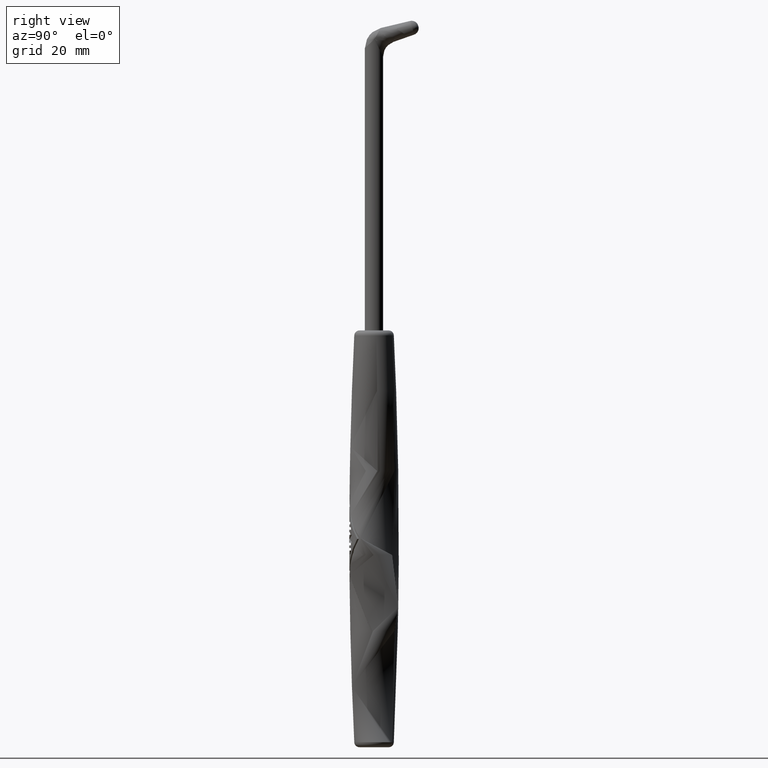
[diagram: clean part render]
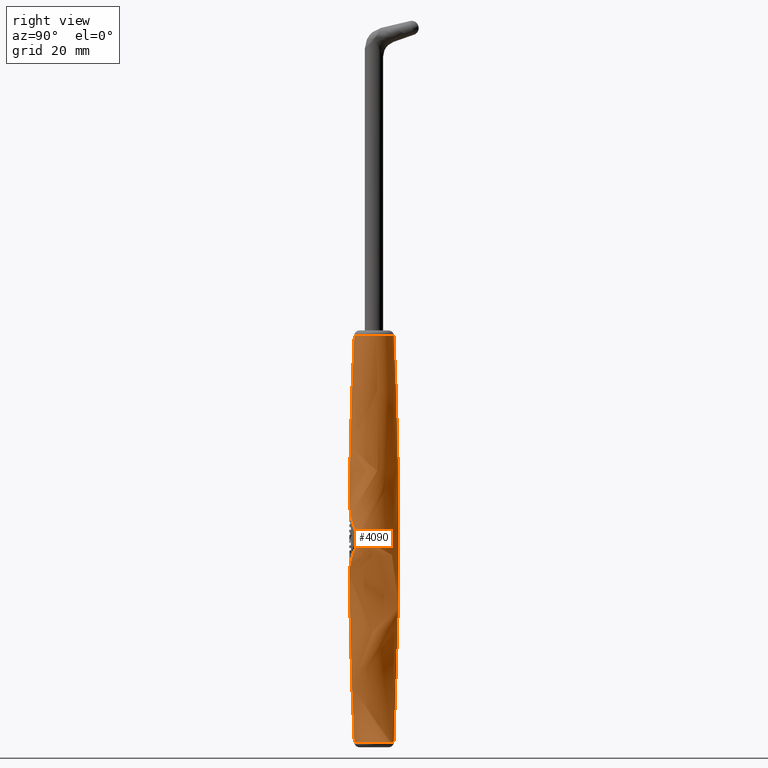
[diagram: same view with one face highlighted and labeled with its STEP entity id]
A machine part, right view. The second image highlights one B-rep face of the part: STEP entity #4090.
In plain terms, the highlighted toroidal blend (fillet) surface has major radius 795.25 mm and minor (blend) radius 800 mm.
Its self-contained STEP definition (entity closure, byte-faithful):
#720=CARTESIAN_POINT('',(32.788637,74.3702629999999,0.));
#730=DIRECTION('',(0.,-1.,0.));
#740=DIRECTION('',(-1.,0.,0.));
#750=AXIS2_PLACEMENT_3D('',#720,#730,#740);
#760=DEGENERATE_TOROIDAL_SURFACE('',#750,795.25,800.,.F.);
#770=CARTESIAN_POINT('',(828.038637,74.3702629999999,0.));
#780=DIRECTION('',(0.,0.,-1.));
#790=DIRECTION('',(1.,0.,0.));
#800=AXIS2_PLACEMENT_3D('',#770,#780,#790);
#810=CIRCLE('',#800,800.);
#820=CARTESIAN_POINT('',(28.992211341008,35.3214519862327,0.));
#830=VERTEX_POINT('',#820);
#840=CARTESIAN_POINT('',(28.0692956196094,67.3664889156815,0.));
#850=VERTEX_POINT('',#840);
#860=EDGE_CURVE('',#830,#850,#810,.T.);
#870=ORIENTED_EDGE('',*,*,#860,.F.);
#880=CARTESIAN_POINT('',(0.,67.4914889156829,-1.72755401708477E-12));
#890=DIRECTION('',(1.,-1.05090672516673E-13,4.40354167717628E-14));
#900=DIRECTION('',(-1.05090672516673E-13,-1.,0.));
#910=AXIS2_PLACEMENT_3D('',#880,#890,#900);
#920=CYLINDRICAL_SURFACE('',#910,0.124999999998482);
#930=CARTESIAN_POINT('',(32.788637,74.3702629999999,0.));
#940=DIRECTION('',(0.,-1.,0.));
#950=DIRECTION('',(-1.,0.,0.));
#960=AXIS2_PLACEMENT_3D('',#930,#940,#950);
#970=DEGENERATE_TOROIDAL_SURFACE('',#960,795.25,800.,.F.);
#980=CARTESIAN_POINT('',(28.06999457162,67.4294571419697,
0.108522159257368));
#990=CARTESIAN_POINT('',(28.0699734230508,67.4247232473878,
0.105816242977389));
#1000=CARTESIAN_POINT('',(28.069945822706,67.4201413777333,
0.102784650626078));
#1010=CARTESIAN_POINT('',(28.0699137051712,67.4157720473487,
0.0994583121192661));
#1020=CARTESIAN_POINT('',(28.069881588067,67.41140277554,
0.0961320182058982));
#1030=CARTESIAN_POINT('',(28.0698449937399,67.4072488955841,
0.0925130370566456));
#1040=CARTESIAN_POINT('',(28.0698062574487,67.4033617192997,
0.0886487295885884));
#1050=CARTESIAN_POINT('',(28.0697674990911,67.3994723286554,
0.0847822207881662));
#1060=CARTESIAN_POINT('',(28.0697267424949,67.395860381997,
0.0806832237079698));
#1070=CARTESIAN_POINT('',(28.069686035617,67.3925361752307,
0.0763764044527527));
#1080=CARTESIAN_POINT('',(28.0696452433021,67.3892049914984,
0.0720605458887191));
#1090=CARTESIAN_POINT('',(28.0696041888446,67.3861390157557,
0.0675022362749467));
#1100=CARTESIAN_POINT('',(28.0695651157633,67.3833822930767,
0.0627531525014719));
#1110=CARTESIAN_POINT('',(28.0695260432232,67.3806256085774,
0.0580041345013525));
#1120=CARTESIAN_POINT('',(28.0694889966555,67.3781800217851,
0.0530673347129486));
#1130=CARTESIAN_POINT('',(28.0694559181566,67.3760748350233,
0.0480061452913774));
#1140=CARTESIAN_POINT('',(28.0694228227395,67.3739685715579,
0.042942367310359));
#1150=CARTESIAN_POINT('',(28.0693937835661,67.372207283759,
0.0377688139176062));
#1160=CARTESIAN_POINT('',(28.069369974776,67.3707922350756,
0.0325163234498288));
#1170=CARTESIAN_POINT('',(28.0693461152446,67.3693741706415,
0.0272526388777971));
#1180=CARTESIAN_POINT('',(28.0693273377002,67.3682939524193,
0.0218667304790719));
#1190=CARTESIAN_POINT('',(28.069314709655,67.3675724940341,
0.0164231679681645));
#1200=CARTESIAN_POINT('',(28.0693020817911,67.3668510460084,
0.010979683622243));
#1210=CARTESIAN_POINT('',(28.0692956196094,67.3664889156815,
0.00548201987246978));
#1220=CARTESIAN_POINT('',(28.0692956196094,67.3664889156815,
-6.45012004021367E-18));
#1230=B_SPLINE_CURVE_WITH_KNOTS('',3,(#980,#990,#1000,#1010,#1020,#1030,
#1040,#1050,#1060,#1070,#1080,#1090,#1100,#1110,#1120,#1130,#1140,#1150,
#1160,#1170,#1180,#1190,#1200,#1210,#1220),.UNSPECIFIED.,.F.,.F.,(4,3,3,
3,3,3,3,3,4),(0.,0.0164264979245538,0.0328966859289097,
0.0492735048877839,0.0656987630179328,0.0821692621437854,
0.0985470328376772,0.114971020702245,0.131441823960036),.UNSPECIFIED.);
#1240=SURFACE_CURVE('',#1230,(#920,#970),.CURVE_3D.);
#1250=CARTESIAN_POINT('',(28.06999457162,67.4294571419697,
0.108522159257338));
#1260=VERTEX_POINT('',#1250);
#1270=EDGE_CURVE('',#1260,#850,#1240,.T.);
#1280=ORIENTED_EDGE('',*,*,#1270,.T.);
#1290=CARTESIAN_POINT('',(28.918386727518,71.4299838762717,
2.39524194810792));
#1300=DIRECTION('',(9.03822346290706E-14,0.496254189687468,
-0.868177274073466));
#1310=DIRECTION('',(0.,-0.868177274073466,-0.496254189687468));
#1320=AXIS2_PLACEMENT_3D('',#1290,#1300,#1310);
#1330=PLANE('',#1320);
#1340=CARTESIAN_POINT('',(30.234746167557,74.2461980676072,
4.00500314923947));
#1350=CARTESIAN_POINT('',(30.1817062592588,74.1870083556419,
3.97117003309334));
#1360=CARTESIAN_POINT('',(30.1301173075447,74.1268307822393,
3.93677225073021));
#1370=CARTESIAN_POINT('',(30.0799439131127,74.0658473414141,
3.90191383077979));
#1380=CARTESIAN_POINT('',(30.0297705578825,74.0048639482368,
3.86705543806513));
#1390=CARTESIAN_POINT('',(29.9810127743052,73.9430744274888,
3.83173625905922));
#1400=CARTESIAN_POINT('',(29.93364036675,73.8806600798221,
3.79605992606691));
#1410=CARTESIAN_POINT('',(29.9099541707193,73.8494529161955,
3.77822176540495));
#1420=CARTESIAN_POINT('',(29.8866143817167,73.8180895403928,
3.7602943131348));
#1430=CARTESIAN_POINT('',(29.8636175492533,73.7865926530052,
3.74229054501623));
#1440=CARTESIAN_POINT('',(29.8406259868798,73.7551029836302,
3.7242909027474));
#1450=CARTESIAN_POINT('',(29.8179573747539,73.723453114406,
3.70619968949518));
#1460=CARTESIAN_POINT('',(29.7955840010559,73.6916265930471,
3.68800750105716));
#1470=CARTESIAN_POINT('',(29.7508402560254,73.6279778212475,
3.65162556545797));
#1480=CARTESIAN_POINT('',(29.7073033511326,73.5636594993777,
3.61486091190821));
#1490=CARTESIAN_POINT('',(29.6649091834331,73.498740265291,
3.57775277412469));
#1500=CARTESIAN_POINT('',(29.6225149421229,73.4338209184825,
3.54064457190888));
#1510=CARTESIAN_POINT('',(29.5812632917381,73.3683001849869,
3.5031926142505));
#1520=CARTESIAN_POINT('',(29.5410979103244,73.3022391311173,
3.46543180693962));
#1530=CARTESIAN_POINT('',(29.5009324872406,73.2361780087116,
3.42767096045321));
#1540=CARTESIAN_POINT('',(29.4618532462666,73.1695761976655,
3.38960105381153));
#1550=CARTESIAN_POINT('',(29.4238108557485,73.1024894250384,
3.35125394086229));
#1560=CARTESIAN_POINT('',(29.3857684452331,73.0354026171464,
3.31290680775555));
#1570=CARTESIAN_POINT('',(29.3487628389945,72.9678305646299,
3.27428230655236));
#1580=CARTESIAN_POINT('',(29.3127508507323,72.8998253757911,
3.23541022260182));
#1590=CARTESIAN_POINT('',(29.2767388566443,72.8318201759509,
3.19653813236279));
#1600=CARTESIAN_POINT('',(29.241720461629,72.7633816244961,
3.15741833631432));
#1610=CARTESIAN_POINT('',(29.2076577802293,72.6945595134934,
3.11807929583475));
#1620=CARTESIAN_POINT('',(29.1735951018119,72.6257374085165,
3.07874025879953));
#1630=CARTESIAN_POINT('',(29.1404881359327,72.5565315822389,
3.03918188487449));
#1640=CARTESIAN_POINT('',(29.1083034887104,72.4869904773692,
2.99943186413834));
#1650=CARTESIAN_POINT('',(29.0761188495112,72.4174493898348,
2.95968185331108));
#1660=CARTESIAN_POINT('',(29.0448565391112,72.3475729040339,
2.91974012726638));
#1670=CARTESIAN_POINT('',(29.0144869017343,72.2774088144339,
2.87963400554512));
#1680=CARTESIAN_POINT('',(28.9537478298715,72.1370811039809,
2.79942203004064));
#1690=CARTESIAN_POINT('',(28.8965767081199,71.9956016968348,
2.71855173932064));
#1700=CARTESIAN_POINT('',(28.8427711091174,71.8533533286512,
2.63724190687582));
#1710=CARTESIAN_POINT('',(28.7889656469496,71.7111053222242,
2.55593228121274));
#1720=CARTESIAN_POINT('',(28.7385263905761,71.5680869990038,
2.47418233886832));
#1730=CARTESIAN_POINT('',(28.691281086988,71.4246864835178,
2.39221393363773));
#1740=CARTESIAN_POINT('',(28.6440543007491,71.2813421725053,
2.31027765514698));
#1750=CARTESIAN_POINT('',(28.5998620645059,71.1371471241399,
2.22785509120554));
#1760=CARTESIAN_POINT('',(28.5585362766433,70.9922030970226,
2.14500440750863));
#1770=CARTESIAN_POINT('',(28.517211309244,70.8472619475574,
2.0621553686911));
#1780=CARTESIAN_POINT('',(28.4787573369181,70.7015843740958,
1.9788853864663));
#1790=CARTESIAN_POINT('',(28.443048786114,70.5552945316985,
1.89526542846195));
#1800=CARTESIAN_POINT('',(28.4073401684612,70.4090044154373,
1.81164531391567));
#1810=CARTESIAN_POINT('',(28.3743770640011,70.2621008015158,
1.72767452123363));
#1820=CARTESIAN_POINT('',(28.344058357606,70.1146963056061,
1.64341742206911));
#1830=CARTESIAN_POINT('',(28.3137396194377,69.9672916552207,
1.5591602346056));
#1840=CARTESIAN_POINT('',(28.2860653886008,69.8193851893839,
1.47461620708619));
#1850=CARTESIAN_POINT('',(28.2609549728831,69.6710825739042,
1.38984573857566));
#1860=CARTESIAN_POINT('',(28.2358445459815,69.5227798923727,
1.30507523230959));
#1870=CARTESIAN_POINT('',(28.213298046074,69.3740803425362,
1.22007787426986));
#1880=CARTESIAN_POINT('',(28.1932518862268,69.2250859937615,
1.13491200777319));
#1890=CARTESIAN_POINT('',(28.1732057263167,69.0760916445206,
1.04974614101001));
#1900=CARTESIAN_POINT('',(28.1556600127313,68.9268019347029,
0.964411444763313));
#1910=CARTESIAN_POINT('',(28.1405655427667,68.7773177932327,
0.878965610471491));
#1920=CARTESIAN_POINT('',(28.125471077698,68.6278337002479,
0.793519803894156));
#1930=CARTESIAN_POINT('',(28.1128279526774,68.4781547288062,
0.707962603880786));
#1940=CARTESIAN_POINT('',(28.1025991278255,68.3283824763397,
0.622352083996166));
#1950=CARTESIAN_POINT('',(28.0923703088146,68.178610309398,
0.536741612997941));
#1960=CARTESIAN_POINT('',(28.0845558746818,68.0287444980206,
0.451077614402515));
#1970=CARTESIAN_POINT('',(28.0791291487566,67.878888657281,
0.36541931507016));
#1980=CARTESIAN_POINT('',(28.0737024269717,67.7290329308741,
0.279761081090869));
#1990=CARTESIAN_POINT('',(28.0706634858687,67.5791868710806,
0.194108372593087));
#2000=CARTESIAN_POINT('',(28.06999457162,67.4294571419698,
0.108522159257407));
#2010=B_SPLINE_CURVE_WITH_KNOTS('',3,(#1340,#1350,#1360,#1370,#1380,
#1390,#1400,#1410,#1420,#1430,#1440,#1450,#1460,#1470,#1480,#1490,#1500,
#1510,#1520,#1530,#1540,#1550,#1560,#1570,#1580,#1590,#1600,#1610,#1620,
#1630,#1640,#1650,#1660,#1670,#1680,#1690,#1700,#1710,#1720,#1730,#1740,
#1750,#1760,#1770,#1780,#1790,#1800,#1810,#1820,#1830,#1840,#1850,#1860,
#1870,#1880,#1890,#1900,#1910,#1920,#1930,#1940,#1950,#1960,#1970,#1980,
#1990,#2000),.UNSPECIFIED.,.F.,.F.,(4,3,3,3,3,3,3,3,3,3,3,3,3,3,3,3,3,3,
3,3,3,3,4),(0.,0.259088585699981,0.517762096744082,0.64677161372312,
0.775589952852004,1.03335513889347,1.2913530934429,1.54961111352186,
1.80812752487538,2.06687196398165,2.32578614188904,2.58478500177156,
3.10257164443499,3.61907575093345,4.13463779936525,4.65099177989991,
5.16807620961438,5.68578176113113,6.20395891764404,6.72241759322654,
7.24092767956193,7.75922033281914,8.27698981107482),.UNSPECIFIED.);
#2020=SURFACE_CURVE('',#2010,(#970,#1330),.CURVE_3D.);
#2030=CARTESIAN_POINT('',(30.234746167557,74.2461980676083,
4.00500314923988));
#2040=VERTEX_POINT('',#2030);
#2050=EDGE_CURVE('',#2040,#1260,#2020,.T.);
#2060=ORIENTED_EDGE('',*,*,#2050,.T.);
#2070=CARTESIAN_POINT('',(0.,74.3702616150425,3.78795883072429));
#2080=DIRECTION('',(1.,-4.03296576653487E-13,-1.26420472522698E-13));
#2090=DIRECTION('',(-4.03296576653487E-13,-1.,0.));
#2100=AXIS2_PLACEMENT_3D('',#2070,#2080,#2090);
#2110=CYLINDRICAL_SURFACE('',#2100,0.250000000001231);
#2120=CARTESIAN_POINT('',(30.2347480376235,74.4943230746498,
4.00500434262608));
#2130=CARTESIAN_POINT('',(30.2420593738104,74.4861638392575,
4.00966809560241));
#2140=CARTESIAN_POINT('',(30.2489458632474,74.477463004218,
4.01403237097603));
#2150=CARTESIAN_POINT('',(30.2551996203182,74.4681988578792,
4.01797686580415));
#2160=CARTESIAN_POINT('',(30.261435568358,74.4589610933565,
4.02191012776388));
#2170=CARTESIAN_POINT('',(30.2671178285117,74.4490450726562,
4.02547347798968));
#2180=CARTESIAN_POINT('',(30.2719033855766,74.4385048588047,
4.02846425618897));
#2190=CARTESIAN_POINT('',(30.2742935987633,74.4332404020662,
4.029958042052));
#2200=CARTESIAN_POINT('',(30.276453599605,74.427833290379,
4.03130500045128));
#2210=CARTESIAN_POINT('',(30.2783406278924,74.4223128571058,
4.03248013490277));
#2220=CARTESIAN_POINT('',(30.2802278601469,74.4167918271345,
4.03365539637335));
#2230=CARTESIAN_POINT('',(30.2818409520026,74.4111613626659,
4.03465812775442));
#2240=CARTESIAN_POINT('',(30.28314917024,74.4054453923228,
4.03547065228875));
#2250=CARTESIAN_POINT('',(30.2844585940107,74.3997241546687,
4.03628392557075));
#2260=CARTESIAN_POINT('',(30.2854667478455,74.3938923666343,
4.03690923964121));
#2270=CARTESIAN_POINT('',(30.2861415604612,74.3880149998973,
4.03732766864203));
#2280=CARTESIAN_POINT('',(30.2868163039173,74.3821382355146,
4.03774605475928));
#2290=CARTESIAN_POINT('',(30.2871582437199,74.3762231913641,
4.03795790335005));
#2300=CARTESIAN_POINT('',(30.2871597352669,74.370300632241,
4.03795882767701));
#2310=CARTESIAN_POINT('',(30.2871612267811,74.364378203364,
4.03795975198364));
#2320=CARTESIAN_POINT('',(30.2868222121013,74.3584621098348,
4.03774971614556));
#2330=CARTESIAN_POINT('',(30.2861503481337,74.3525849328539,
4.0373331175021));
#2340=CARTESIAN_POINT('',(30.2854780760939,74.3467041862324,
4.03691626582774));
#2350=CARTESIAN_POINT('',(30.2844706757926,74.3408539513166,
4.03629142805617));
#2360=CARTESIAN_POINT('',(30.2831520389556,74.3350903732154,
4.03547243388159));
#2370=CARTESIAN_POINT('',(30.281833443516,74.3293269760562,
4.03465346541856));
#2380=CARTESIAN_POINT('',(30.280204777702,74.3236546120436,
4.03364104048844));
#2390=CARTESIAN_POINT('',(30.2783115969566,74.3181255146297,
4.03246205572088));
#2400=CARTESIAN_POINT('',(30.2764169339809,74.3125920883128,
4.03128214788933));
#2410=CARTESIAN_POINT('',(30.2742669559926,74.3072229984466,
4.02994139638407));
#2420=CARTESIAN_POINT('',(30.2718969685527,74.3020042383017,
4.0284602455245));
#2430=CARTESIAN_POINT('',(30.2671513840331,74.2915543654723,
4.02549443799664));
#2440=CARTESIAN_POINT('',(30.2614872618113,74.2816382045003,
4.02194273941818));
#2450=CARTESIAN_POINT('',(30.2551964681484,74.2723197018265,
4.0179748772015));
#2460=CARTESIAN_POINT('',(30.252051317783,74.2676608155779,
4.01599110154945));
#2470=CARTESIAN_POINT('',(30.2487502748715,74.2631518102141,
4.01390381085246));
#2480=CARTESIAN_POINT('',(30.2453317280085,74.2587993078318,
4.01173584936765));
#2490=CARTESIAN_POINT('',(30.2419111527166,74.2544442228487,
4.0095666015012));
#2500=CARTESIAN_POINT('',(30.2383855647095,74.2502594409404,
4.00732464922892));
#2510=CARTESIAN_POINT('',(30.2347461675578,74.2461980676077,
4.00500314923989));
#2520=B_SPLINE_CURVE_WITH_KNOTS('',3,(#2120,#2130,#2140,#2150,#2160,
#2170,#2180,#2190,#2200,#2210,#2220,#2230,#2240,#2250,#2260,#2270,#2280,
#2290,#2300,#2310,#2320,#2330,#2340,#2350,#2360,#2370,#2380,#2390,#2400,
#2410,#2420,#2430,#2440,#2450,#2460,#2470,#2480,#2490,#2500,#2510),
.UNSPECIFIED.,.F.,.F.,(4,3,3,3,3,3,3,3,3,3,3,3,3,4),(0.,
0.0356535041775491,0.0713501363249091,0.0892404012219102,
0.107043619773497,0.124838552331442,0.142606666806014,0.160375419208476,
0.178234765643082,0.196142457291439,0.213957262719159,0.249643838769491,
0.267509770043358,0.285294368627586),.UNSPECIFIED.);
#2530=SURFACE_CURVE('',#2520,(#2110,#970),.CURVE_3D.);
#2540=CARTESIAN_POINT('',(30.2347480378606,74.4943230743806,
4.00500434277834));
#2550=VERTEX_POINT('',#2540);
#2560=EDGE_CURVE('',#2550,#2040,#2530,.T.);
#2570=ORIENTED_EDGE('',*,*,#2560,.T.);
#2580=CARTESIAN_POINT('',(28.9242798184541,77.3233665555622,
2.38794596402923));
#2590=DIRECTION('',(-3.0989023252775E-13,-0.496245838467074,
-0.868182047616807));
#2600=DIRECTION('',(0.,-0.868182047616807,0.496245838467074));
#2610=AXIS2_PLACEMENT_3D('',#2580,#2590,#2600);
#2620=PLANE('',#2610);
#2630=CARTESIAN_POINT('',(28.0699968167995,81.3110063456077,
0.108643303317019));
#2640=CARTESIAN_POINT('',(28.0706683107015,81.16118413919,
0.19428046507227));
#2650=CARTESIAN_POINT('',(28.073711558059,81.0115092860478,
0.279833400886687));
#2660=CARTESIAN_POINT('',(28.0791188017404,80.862093901879,
0.365238026333908));
#2670=CARTESIAN_POINT('',(28.0818224224958,80.787386239783,
0.407940321916425));
#2680=CARTESIAN_POINT('',(28.0851171540816,80.7127435017895,
0.450605507406936));
#2690=CARTESIAN_POINT('',(28.0890026699385,80.6381801254288,
0.493225330429795));
#2700=CARTESIAN_POINT('',(28.092887483294,80.5636302301314,
0.53583744778585));
#2710=CARTESIAN_POINT('',(28.0973684217499,80.4890521249626,
0.578465689676344));
#2720=CARTESIAN_POINT('',(28.1024514364922,80.4144523972283,
0.621106290850402));
#2730=CARTESIAN_POINT('',(28.1126173506467,80.2652546343767,
0.70638652571239));
#2740=CARTESIAN_POINT('',(28.1251902415471,80.1159856946594,
0.791707444695053));
#2750=CARTESIAN_POINT('',(28.1402181336167,79.9667808681183,
0.876991717104768));
#2760=CARTESIAN_POINT('',(28.1552460403478,79.8175758960113,
0.962276072718849));
#2770=CARTESIAN_POINT('',(28.1727288014737,79.6684347523449,
1.04752394451024));
#2780=CARTESIAN_POINT('',(28.1927231553511,79.5194890505832,
1.13266010329132));
#2790=CARTESIAN_POINT('',(28.2127175256544,79.3705432264582,
1.21779633201429));
#2800=CARTESIAN_POINT('',(28.2352233255194,79.2217924317736,
1.30282108347725));
#2810=CARTESIAN_POINT('',(28.2603089025166,79.0733656506809,
1.38766063139981));
#2820=CARTESIAN_POINT('',(28.2853944933404,78.9249387877784,
1.47250022608422));
#2830=CARTESIAN_POINT('',(28.3130596849734,78.7768353517907,
1.55715495257044));
#2840=CARTESIAN_POINT('',(28.3433879241392,78.6291834337235,
1.64155159505303));
#2850=CARTESIAN_POINT('',(28.3737161666159,78.4815314995375,
1.72594824674899));
#2860=CARTESIAN_POINT('',(28.4067072750635,78.3343302568246,
1.81008728684307));
#2870=CARTESIAN_POINT('',(28.4424640068266,78.1877096307771,
1.89389445114605));
#2880=CARTESIAN_POINT('',(28.4782207177868,78.0410890900315,
1.97770156669112));
#2890=CARTESIAN_POINT('',(28.5167428813471,77.8950480068944,
2.06117746895261));
#2900=CARTESIAN_POINT('',(28.5581576432296,77.7497222801946,
2.14424447925872));
#2910=CARTESIAN_POINT('',(28.5995723376139,77.6043967903484,
2.22731135418124));
#2920=CARTESIAN_POINT('',(28.6438795011282,77.4597850320563,
2.30997026590614));
#2930=CARTESIAN_POINT('',(28.6912367780341,77.3160350165174,
2.39213661245359));
#2940=CARTESIAN_POINT('',(28.7149154215102,77.2441599935002,
2.43321979444283));
#2950=CARTESIAN_POINT('',(28.7393571614244,77.1725004743896,
2.47417979615108));
#2960=CARTESIAN_POINT('',(28.7645851818467,77.1010766328867,
2.51500508643487));
#2970=CARTESIAN_POINT('',(28.7898131908241,77.0296528237863,
2.55583035819767));
#2980=CARTESIAN_POINT('',(28.8158274816452,76.9584646082223,
2.59652096660275));
#2990=CARTESIAN_POINT('',(28.8426538714459,76.8875338029379,
2.63706444137062));
#3000=CARTESIAN_POINT('',(28.8694841596471,76.8165926900167,
2.6776138079004));
#3010=CARTESIAN_POINT('',(28.8971031587829,76.7459663587217,
2.71798324779783));
#3020=CARTESIAN_POINT('',(28.9256287455513,76.6754614497684,
2.75828328366655));
#3030=CARTESIAN_POINT('',(28.9541507047681,76.6049655068078,
2.79857819464637));
#3040=CARTESIAN_POINT('',(28.9835571744503,76.5346502988284,
2.838769798963));
#3050=CARTESIAN_POINT('',(29.0138740207768,76.4645749991253,
2.87882427365808));
#3060=CARTESIAN_POINT('',(29.0441908813188,76.3944996665637,
2.9188787671348));
#3070=CARTESIAN_POINT('',(29.0754180926825,76.3246641827707,
2.9587961650042));
#3080=CARTESIAN_POINT('',(29.1075839451922,76.2551274057013,
2.99854282451626));
#3090=CARTESIAN_POINT('',(29.1397498119656,76.1855905977964,
3.03828950165361));
#3100=CARTESIAN_POINT('',(29.172854298153,76.1163524068298,
3.07786549176366));
#3110=CARTESIAN_POINT('',(29.2069288448924,76.0474717070709,
3.11723714278995));
#3120=CARTESIAN_POINT('',(29.2410034039548,75.9785909824013,
3.15660880805496));
#3130=CARTESIAN_POINT('',(29.2760480100998,75.9100676194291,
3.19577620826319));
#3140=CARTESIAN_POINT('',(29.3120980727172,75.8419610341458,
3.23470538171459));
#3150=CARTESIAN_POINT('',(29.3481481425666,75.7738544351996,
3.27363456297557));
#3160=CARTESIAN_POINT('',(29.3852036700047,75.7061644327583,
3.3123256210428));
#3170=CARTESIAN_POINT('',(29.4233049346044,75.6389517661254,
3.35074383782165));
#3180=CARTESIAN_POINT('',(29.4614061965884,75.5717391041069,
3.38916205196297));
#3190=CARTESIAN_POINT('',(29.5005532207634,75.5050035298935,
3.42730756657258));
#3200=CARTESIAN_POINT('',(29.5407921261501,75.4388082212718,
3.46514426973838));
#3210=CARTESIAN_POINT('',(29.5810310120765,75.3726129446635,
3.50298095460555));
#3220=CARTESIAN_POINT('',(29.6223618417442,75.3069575999166,
3.5405090187865));
#3230=CARTESIAN_POINT('',(29.6648375768794,75.2419093463469,
3.57769007455942));
#3240=CARTESIAN_POINT('',(29.7073132656727,75.1768611637463,
3.614871089767));
#3250=CARTESIAN_POINT('',(29.7509339794132,75.1124196296943,
3.65170534955302));
#3260=CARTESIAN_POINT('',(29.7957605029309,75.0486579671322,
3.6881510003091));
#3270=CARTESIAN_POINT('',(29.8405869392075,74.9848964286628,
3.72459658013487));
#3280=CARTESIAN_POINT('',(29.8866193892833,74.921814182604,
3.76065388192777));
#3290=CARTESIAN_POINT('',(29.9339273281325,74.8594932615775,
3.79627601647169));
#3300=CARTESIAN_POINT('',(29.9812138464223,74.7972005588379,
3.83188202167098));
#3310=CARTESIAN_POINT('',(30.0298895925116,74.7355174895693,
3.8671395653019));
#3320=CARTESIAN_POINT('',(30.0800184445078,74.6745893267684,
3.90196561050564));
#3330=CARTESIAN_POINT('',(30.1301442206597,74.6136649024441,
3.93678951882634));
#3340=CARTESIAN_POINT('',(30.1817101293128,74.5535118149128,
3.9711725372788));
#3350=CARTESIAN_POINT('',(30.2347480378606,74.4943230743806,
4.00500434277834));
#3360=B_SPLINE_CURVE_WITH_KNOTS('',3,(#2630,#2640,#2650,#2660,#2670,
#2680,#2690,#2700,#2710,#2720,#2730,#2740,#2750,#2760,#2770,#2780,#2790,
#2800,#2810,#2820,#2830,#2840,#2850,#2860,#2870,#2880,#2890,#2900,#2910,
#2920,#2930,#2940,#2950,#2960,#2970,#2980,#2990,#3000,#3010,#3020,#3030,
#3040,#3050,#3060,#3070,#3080,#3090,#3100,#3110,#3120,#3130,#3140,#3150,
#3160,#3170,#3180,#3190,#3200,#3210,#3220,#3230,#3240,#3250,#3260,#3270,
#3280,#3290,#3300,#3310,#3320,#3330,#3340,#3350),.UNSPECIFIED.,.F.,.F.,(
4,3,3,3,3,3,3,3,3,3,3,3,3,3,3,3,3,3,3,3,3,3,3,3,4),(0.,0.517168561879387
,0.775271017536104,1.03332057519467,1.55036129544576,2.06825279804747,
2.58655666476025,3.10490191703535,3.62298999481516,4.14059865774157,
4.65758427596712,4.91582013215457,5.17388195063626,5.43186617357717,
5.69030964512259,5.9491246805618,6.20812622421887,6.46715810233556,
6.72609554966842,6.98484753690025,7.24335876599371,7.50161118285568,
7.75962485750427,8.01790805501589,8.27687426289383),.UNSPECIFIED.);
#3370=SURFACE_CURVE('',#3360,(#970,#2620),.CURVE_3D.);
#3380=CARTESIAN_POINT('',(28.0699968167995,81.3110063456079,
0.108643303316985));
#3390=VERTEX_POINT('',#3380);
#3400=EDGE_CURVE('',#3390,#2550,#3370,.T.);
#3410=ORIENTED_EDGE('',*,*,#3400,.T.);
#3420=CARTESIAN_POINT('',(0.,81.2489067119184,6.51447798013415E-13));
#3430=DIRECTION('',(1.,-6.27828557378425E-13,1.92019213787672E-15));
#3440=DIRECTION('',(-6.27828557378425E-13,-1.,0.));
#3450=AXIS2_PLACEMENT_3D('',#3420,#3430,#3440);
#3460=CYLINDRICAL_SURFACE('',#3450,0.125138850330428);
#3470=CARTESIAN_POINT('',(28.0692956938341,81.3740455622312,
5.23848039124982E-15));
#3480=CARTESIAN_POINT('',(28.0692956938341,81.3740455622312,
0.00544642704839669));
#3490=CARTESIAN_POINT('',(28.0693020740977,81.3736886445088,
0.0109266045777414));
#3500=CARTESIAN_POINT('',(28.0693146802221,81.3729697133887,
0.0163738671012464));
#3510=CARTESIAN_POINT('',(28.0693272860572,81.3722507987702,
0.021821004593831));
#3520=CARTESIAN_POINT('',(28.0693461082397,81.3711701742011,
0.0272317495757009));
#3530=CARTESIAN_POINT('',(28.0693701876659,81.3697415251314,
0.0325373596595241));
#3540=CARTESIAN_POINT('',(28.0693942676328,81.3683128439844,
0.0378430888696772));
#3550=CARTESIAN_POINT('',(28.069423575492,81.3665371913832,
0.0430403537857003));
#3560=CARTESIAN_POINT('',(28.069456507367,81.3644448375875,
0.048069464064644));
#3570=CARTESIAN_POINT('',(28.0694894312333,81.3623529926263,
0.053097351326517));
#3580=CARTESIAN_POINT('',(28.0695263873162,81.3599187115465,
0.0580194208087586));
#3590=CARTESIAN_POINT('',(28.0695655369175,81.3571627419201,
0.0627723173587913));
#3600=CARTESIAN_POINT('',(28.0696046855484,81.3544068406125,
0.0675250960873945));
#3610=CARTESIAN_POINT('',(28.0696459859262,81.3513308744514,
0.0721055818277333));
#3620=CARTESIAN_POINT('',(28.0696871769567,81.347973778823,
0.0764555303006878));
#3630=CARTESIAN_POINT('',(28.0697283688923,81.3446166094358,
0.080805574346506));
#3640=CARTESIAN_POINT('',(28.0697694044668,81.3409805574296,
0.0849224114760643));
#3650=CARTESIAN_POINT('',(28.06980797862,81.3371164594417,
0.088762448709636));
#3660=CARTESIAN_POINT('',(28.0698465342555,81.3332542164279,
0.0926006425195907));
#3670=CARTESIAN_POINT('',(28.0698831103018,81.3291165001114,
0.0962096930218957));
#3680=CARTESIAN_POINT('',(28.0699153469147,81.324746458492,
0.0995392620986707));
#3690=CARTESIAN_POINT('',(28.0699475825737,81.3203765461818,
0.102868732653799));
#3700=CARTESIAN_POINT('',(28.0699754346483,81.3157770829882,
0.105916388405667));
#3710=CARTESIAN_POINT('',(28.0699968167995,81.3110063456079,
0.108643303316996));
#3720=B_SPLINE_CURVE_WITH_KNOTS('',3,(#3470,#3480,#3490,#3500,#3510,
#3520,#3530,#3540,#3550,#3560,#3570,#3580,#3590,#3600,#3610,#3620,#3630,
#3640,#3650,#3660,#3670,#3680,#3690,#3700,#3710),.UNSPECIFIED.,.F.,.F.,(
4,3,3,3,3,3,3,3,4),(0.,0.0164209669966134,0.0329157104494657,
0.0493381188912263,0.0657576579475816,0.0822523787327227,
0.0986762381450198,0.115094356048437,0.131589042146129),.UNSPECIFIED.);
#3730=SURFACE_CURVE('',#3720,(#3460,#970),.CURVE_3D.);
#3740=CARTESIAN_POINT('',(28.0692956938341,81.3740455622311,0.));
#3750=VERTEX_POINT('',#3740);
#3760=EDGE_CURVE('',#3750,#3390,#3730,.T.);
#3770=ORIENTED_EDGE('',*,*,#3760,.T.);
#3780=CARTESIAN_POINT('',(28.9922113410079,113.419074013766,0.));
#3790=VERTEX_POINT('',#3780);
#3800=EDGE_CURVE('',#3750,#3790,#810,.T.);
#3810=ORIENTED_EDGE('',*,*,#3800,.F.);
#3820=CARTESIAN_POINT('',(32.788637,113.419074013767,0.));
#3830=DIRECTION('',(0.,-1.,0.));
#3840=DIRECTION('',(-1.,0.,0.));
#3850=AXIS2_PLACEMENT_3D('',#3820,#3830,#3840);
#3860=CIRCLE('',#3850,3.79642565899203);
#3870=CARTESIAN_POINT('',(36.5850626589921,113.419074013767,0.));
#3880=VERTEX_POINT('',#3870);
#3890=EDGE_CURVE('',#3880,#3790,#3860,.T.);
#3900=ORIENTED_EDGE('',*,*,#3890,.T.);
#3910=CARTESIAN_POINT('',(-762.461363,74.3702629999999,0.));
#3920=DIRECTION('',(-0.,0.,1.));
#3930=DIRECTION('',(-1.,0.,0.));
#3940=AXIS2_PLACEMENT_3D('',#3910,#3920,#3930);
#3950=CIRCLE('',#3940,800.);
#3960=CARTESIAN_POINT('',(36.585062658992,35.3214519862327,0.));
#3970=VERTEX_POINT('',#3960);
#3980=EDGE_CURVE('',#3970,#3880,#3950,.T.);
#3990=ORIENTED_EDGE('',*,*,#3980,.T.);
#4000=CARTESIAN_POINT('',(32.788637,35.3214519862327,0.));
#4010=DIRECTION('',(0.,-1.,0.));
#4020=DIRECTION('',(-1.,0.,0.));
#4030=AXIS2_PLACEMENT_3D('',#4000,#4010,#4020);
#4040=CIRCLE('',#4030,3.79642565899203);
#4050=EDGE_CURVE('',#3970,#830,#4040,.T.);
#4060=ORIENTED_EDGE('',*,*,#4050,.F.);
#4070=EDGE_LOOP('',(#4060,#3990,#3900,#3810,#3770,#3410,#2570,#2060,
#1280,#870));
#4080=FACE_OUTER_BOUND('',#4070,.T.);
#4090=ADVANCED_FACE('',(#4080),#760,.F.);